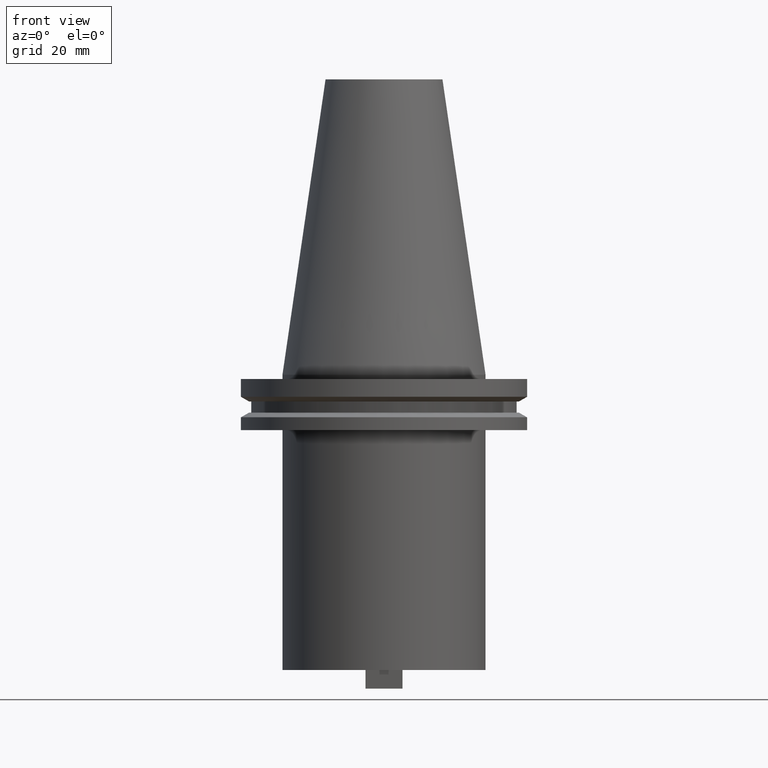
[diagram: clean part render]
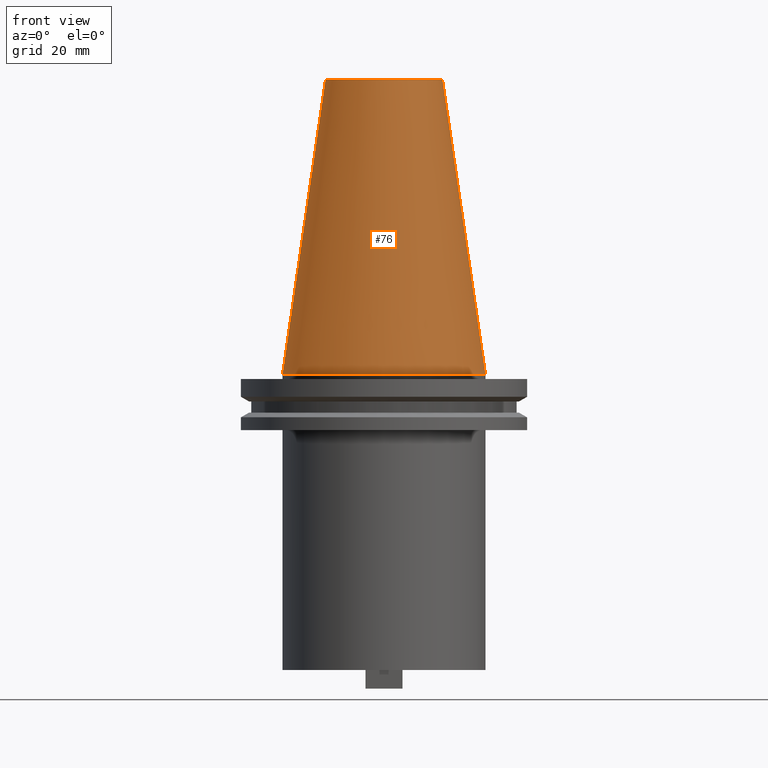
[diagram: same view with one face highlighted and labeled with its STEP entity id]
A machine part, front view. The second image highlights one B-rep face of the part: STEP entity #76.
In plain terms, the highlighted conical surface has half-angle 8.297 deg.
Its self-contained STEP definition (entity closure, byte-faithful):
#75 = ORIENTED_EDGE ( 'NONE', *, *, #947, .F. ) ;
#76 = ADVANCED_FACE ( 'NONE', ( #606 ), #562, .T. ) ;
#106 = CARTESIAN_POINT ( 'NONE',  ( 34.92499999999999005, 4.277078946022130098E-15, 0.000000000000000000 ) ) ;
#119 = DIRECTION ( 'NONE',  ( 0.1443082272672999988, 1.767266086135277066E-17, -0.9895327864921755756 ) ) ;
#132 = AXIS2_PLACEMENT_3D ( 'NONE', #180, #791, #322 ) ;
#138 = CARTESIAN_POINT ( 'NONE',  ( -20.10819343178871321, 0.000000000000000000, 101.5999999999999801 ) ) ;
#178 = ORIENTED_EDGE ( 'NONE', *, *, #477, .T. ) ;
#180 = CARTESIAN_POINT ( 'NONE',  ( 0.000000000000000000, 0.000000000000000000, 0.000000000000000000 ) ) ;
#204 = DIRECTION ( 'NONE',  ( 0.000000000000000000, 0.000000000000000000, -1.000000000000000000 ) ) ;
#208 = VERTEX_POINT ( 'NONE', #138 ) ;
#236 = CARTESIAN_POINT ( 'NONE',  ( 34.92499999999999005, 4.277078946022130098E-15, 0.000000000000000000 ) ) ;
#243 = ORIENTED_EDGE ( 'NONE', *, *, #417, .T. ) ;
#263 = AXIS2_PLACEMENT_3D ( 'NONE', #505, #204, #814 ) ;
#288 = CARTESIAN_POINT ( 'NONE',  ( 20.10819343178871321, 3.369811209154858606E-15, 101.5999999999999801 ) ) ;
#322 = DIRECTION ( 'NONE',  ( 1.000000000000000000, 0.000000000000000000, 0.000000000000000000 ) ) ;
#342 = DIRECTION ( 'NONE',  ( 1.000000000000000000, 0.000000000000000000, 0.000000000000000000 ) ) ;
#347 = VECTOR ( 'NONE', #119, 999.9999999999998863 ) ;
#366 = AXIS2_PLACEMENT_3D ( 'NONE', #520, #898, #342 ) ;
#417 = EDGE_CURVE ( 'NONE', #888, #648, #465, .T. ) ;
#421 = ORIENTED_EDGE ( 'NONE', *, *, #960, .F. ) ;
#465 = CIRCLE ( 'NONE', #132, 34.92499999999999005 ) ;
#477 = EDGE_CURVE ( 'NONE', #208, #888, #964, .T. ) ;
#505 = CARTESIAN_POINT ( 'NONE',  ( 0.000000000000000000, 0.000000000000000000, 0.000000000000000000 ) ) ;
#520 = CARTESIAN_POINT ( 'NONE',  ( 0.000000000000000000, 0.000000000000000000, 101.5999999999999801 ) ) ;
#562 = CONICAL_SURFACE ( 'NONE', #263, 34.92499999999999005, 0.1448138465474119452 ) ;
#600 = CARTESIAN_POINT ( 'NONE',  ( -34.92499999999999005, 0.000000000000000000, 0.000000000000000000 ) ) ;
#606 = FACE_OUTER_BOUND ( 'NONE', #660, .T. ) ;
#648 = VERTEX_POINT ( 'NONE', #236 ) ;
#660 = EDGE_LOOP ( 'NONE', ( #421, #75, #178, #243 ) ) ;
#672 = LINE ( 'NONE', #106, #347 ) ;
#674 = VERTEX_POINT ( 'NONE', #288 ) ;
#791 = DIRECTION ( 'NONE',  ( -0.000000000000000000, -0.000000000000000000, 1.000000000000000000 ) ) ;
#803 = CIRCLE ( 'NONE', #366, 20.10819343178871321 ) ;
#814 = DIRECTION ( 'NONE',  ( -1.000000000000000000, 0.000000000000000000, 0.000000000000000000 ) ) ;
#828 = CARTESIAN_POINT ( 'NONE',  ( -34.92499999999999005, 0.000000000000000000, 0.000000000000000000 ) ) ;
#853 = VECTOR ( 'NONE', #911, 999.9999999999998863 ) ;
#888 = VERTEX_POINT ( 'NONE', #828 ) ;
#898 = DIRECTION ( 'NONE',  ( -0.000000000000000000, -0.000000000000000000, 1.000000000000000000 ) ) ;
#911 = DIRECTION ( 'NONE',  ( -0.1443082272672999988, 0.000000000000000000, -0.9895327864921755756 ) ) ;
#947 = EDGE_CURVE ( 'NONE', #208, #674, #803, .T. ) ;
#960 = EDGE_CURVE ( 'NONE', #674, #648, #672, .T. ) ;
#964 = LINE ( 'NONE', #600, #853 ) ;